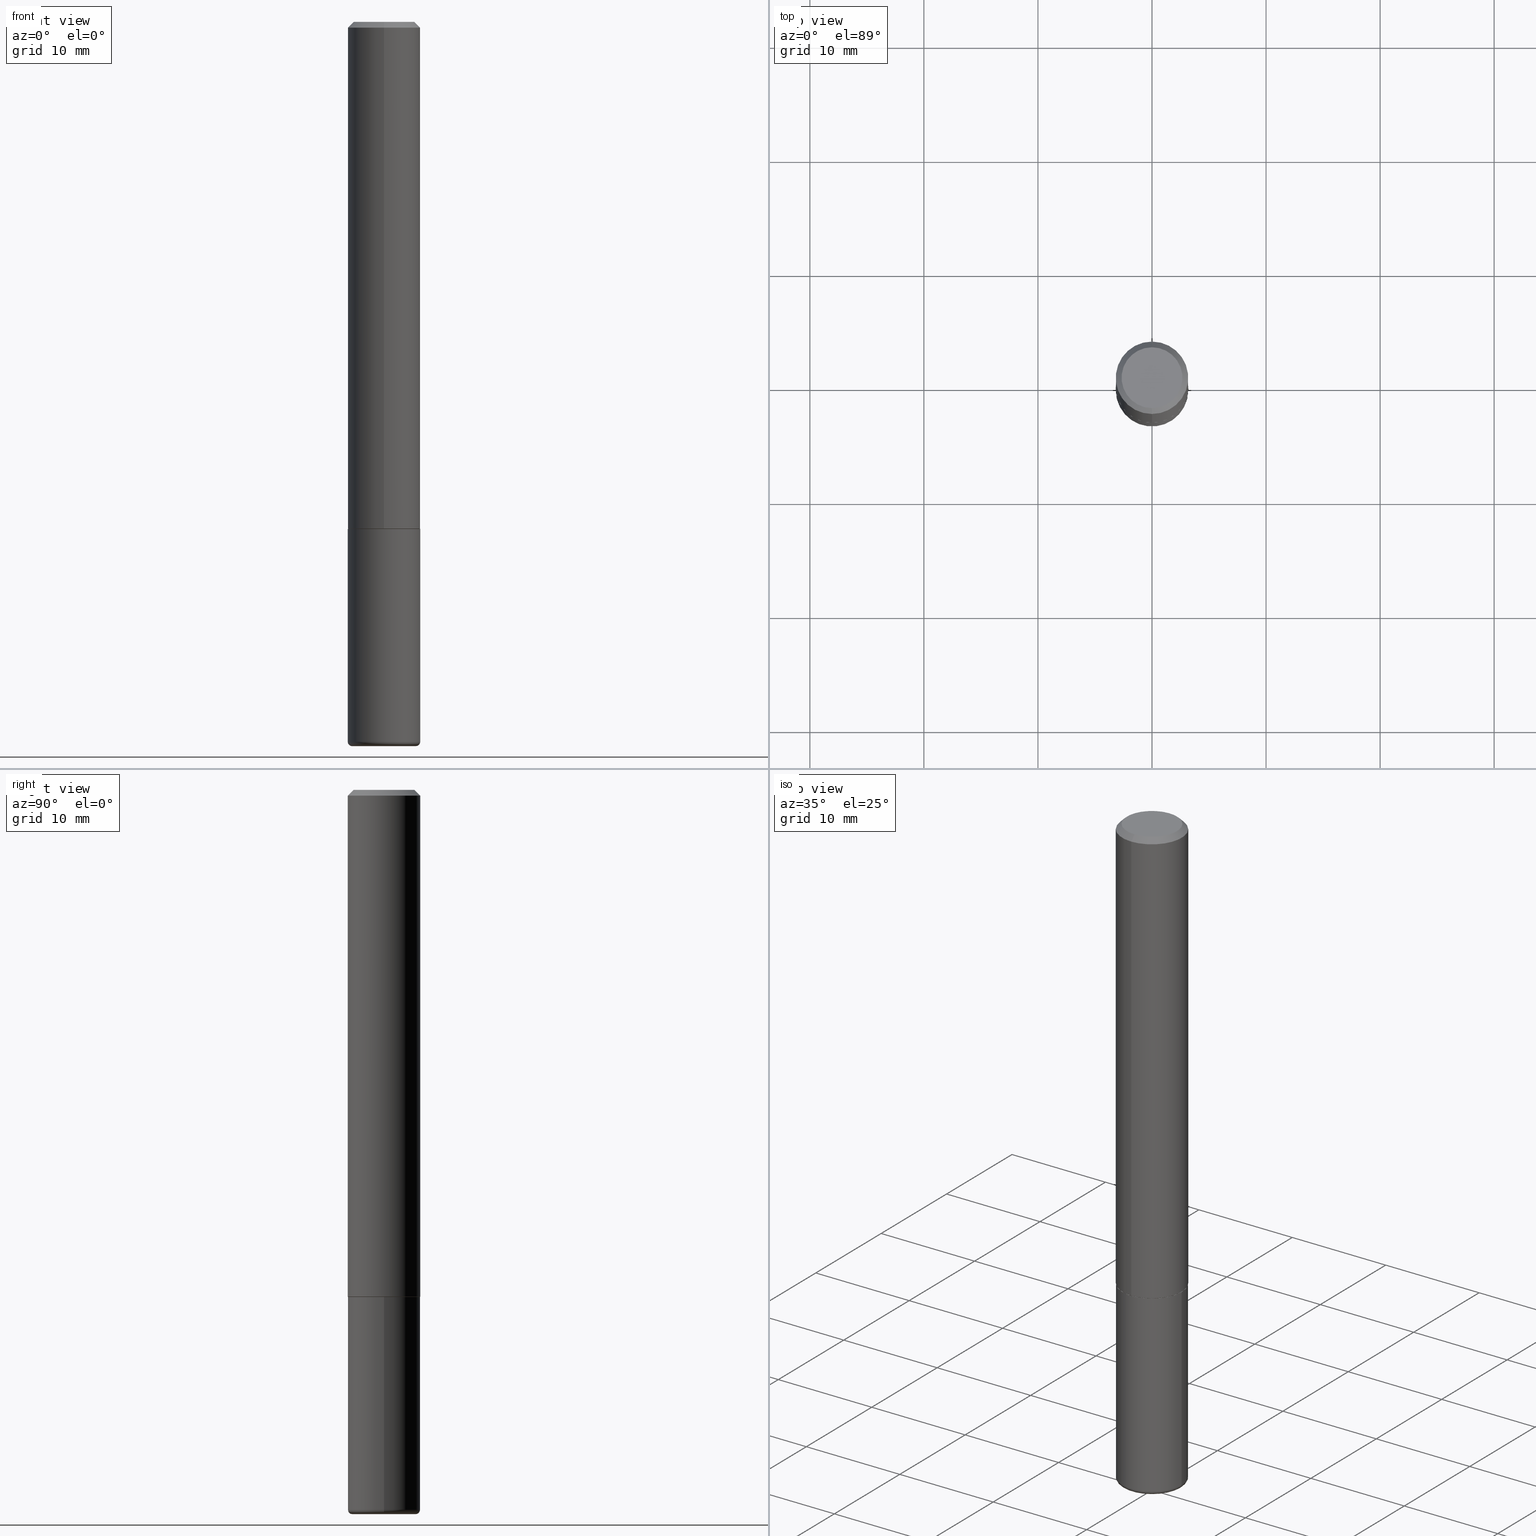
[diagram: canonical four-view strip — front | top / right | iso, engineering-drawing reading convention]
A machine part, canonical four-view strip (front | top / right | iso — engineering-drawing reading convention). The complete STEP part file that produces these views, byte-faithful:
ISO-10303-21;
HEADER;
FILE_DESCRIPTION (( 'STEP AP203' ),
    '1' );
FILE_NAME ('37433.STEP',
    '2024-03-02T01:16:58',
    ( '' ),
    ( '' ),
    'SwSTEP 2.0',
    'SolidWorks 2023',
    '' );
FILE_SCHEMA (( 'CONFIG_CONTROL_DESIGN' ));
ENDSEC;

DATA;
#1 = DIRECTION ( 'NONE',  ( -6.982962677686265922E-15, -1.000000000000000000, 4.406206441393973340E-15 ) ) ;
#2 = DIRECTION ( 'NONE',  ( -6.982962677686265922E-15, -1.000000000000000000, 4.406206441393973340E-15 ) ) ;
#3 = ORIENTED_EDGE ( 'NONE', *, *, #90, .T. ) ;
#4 = DIRECTION ( 'NONE',  ( -2.444769625519019670E-29, 3.492482605351917386E-15, 1.000000000000000000 ) ) ;
#5 = APPLICATION_CONTEXT ( 'configuration controlled 3d designs of mechanical parts and assemblies' ) ;
#6 = DIRECTION ( 'NONE',  ( 6.982962677686265922E-15, 1.000000000000000000, -3.483106191921935554E-15 ) ) ;
#7 = ORIENTED_EDGE ( 'NONE', *, *, #345, .F. ) ;
#8 = EDGE_CURVE ( 'NONE', #327, #274, #260, .T. ) ;
#9 = CARTESIAN_POINT ( 'NONE',  ( 0.000000000000000000, 0.000000000000000000, 0.000000000000000000 ) ) ;
#10 = AXIS2_PLACEMENT_3D ( 'NONE', #28, #411, #384 ) ;
#11 = CARTESIAN_POINT ( 'NONE',  ( 2.501956864421970211E-45, -3.574177598218272952E-31, -1.023391667789888407E-16 ) ) ;
#12 = VERTEX_POINT ( 'NONE', #375 ) ;
#13 = DATE_AND_TIME ( #281, #34 ) ;
#14 = DIRECTION ( 'NONE',  ( -1.000000000000000000, 6.982962677686265922E-15, -4.876176775795935793E-29 ) ) ;
#15 = VERTEX_POINT ( 'NONE', #218 ) ;
#16 = DIRECTION ( 'NONE',  ( -2.444769625519019670E-29, 3.492482605351917386E-15, 1.000000000000000000 ) ) ;
#17 = ORIENTED_EDGE ( 'NONE', *, *, #294, .T. ) ;
#18 = AXIS2_PLACEMENT_3D ( 'NONE', #11, #77, #206 ) ;
#19 = CARTESIAN_POINT ( 'NONE',  ( 4.279570410823989044E-29, -6.110092342975505460E-15, -1.750000000000000222 ) ) ;
#20 = AXIS2_PLACEMENT_3D ( 'NONE', #165, #4, #1 ) ;
#21 = DESIGN_CONTEXT ( 'detailed design', #108, 'design' ) ;
#22 = COORDINATED_UNIVERSAL_TIME_OFFSET ( 5, 0, .BEHIND. ) ;
#23 = DIRECTION ( 'NONE',  ( -6.982962677686265922E-15, -1.000000000000000000, 4.406206441393973340E-15 ) ) ;
#24 = ADVANCED_FACE ( 'NONE', ( #249 ), #89, .T. ) ;
#25 = SHAPE_DEFINITION_REPRESENTATION ( #416, #341 ) ;
#26 = DIRECTION ( 'NONE',  ( -2.444769625519019670E-29, 3.492482605351917386E-15, 1.000000000000000000 ) ) ;
#27 = COORDINATED_UNIVERSAL_TIME_OFFSET ( 5, 0, .BEHIND. ) ;
#28 = CARTESIAN_POINT ( 'NONE',  ( 4.279570410823989044E-29, -6.110092342975505460E-15, -1.750000000000000222 ) ) ;
#29 = AXIS2_PLACEMENT_3D ( 'NONE', #381, #127, #125 ) ;
#30 = COORDINATED_UNIVERSAL_TIME_OFFSET ( 5, 0, .BEHIND. ) ;
#31 = CARTESIAN_POINT ( 'NONE',  ( 8.846257060213681156E-16, 0.1239999999999938790, -1.750000000000000444 ) ) ;
#32 = DIRECTION ( 'NONE',  ( -2.445468806185136597E-29, 3.491481338843145583E-15, 1.000000000000000000 ) ) ;
#33 =( LENGTH_UNIT ( ) NAMED_UNIT ( * ) SI_UNIT ( $, .METRE. ) );
#34 = LOCAL_TIME ( 20, 16, 58.00000000000000000, #22 ) ;
#35 = PLANE ( 'NONE',  #149 ) ;
#36 = CARTESIAN_POINT ( 'NONE',  ( 8.728703347107837333E-16, 0.1249999999999999306, -0.02000000000000046185 ) ) ;
#37 = DIRECTION ( 'NONE',  ( -6.982962677686265922E-15, -1.000000000000000000, 3.483106191921935554E-15 ) ) ;
#38 = CC_DESIGN_DATE_AND_TIME_ASSIGNMENT ( #184, #74, ( #170 ) ) ;
#39 = ORIENTED_EDGE ( 'NONE', *, *, #253, .T. ) ;
#40 = CARTESIAN_POINT ( 'NONE',  ( 4.278346844658283722E-29, -6.111844559365854735E-15, -1.750000000000000000 ) ) ;
#41 = ORIENTED_EDGE ( 'NONE', *, *, #385, .F. ) ;
#42 = COORDINATED_UNIVERSAL_TIME_OFFSET ( 5, 0, .BEHIND. ) ;
#43 = CARTESIAN_POINT ( 'NONE',  ( -0.1100000000000000006, -7.867629522548422746E-15, -2.500000000000000444 ) ) ;
#44 = VERTEX_POINT ( 'NONE', #150 ) ;
#45 = EDGE_CURVE ( 'NONE', #342, #12, #75, .T. ) ;
#46 = CYLINDRICAL_SURFACE ( 'NONE', #66, 0.1250000000000000000 ) ;
#47 = ORIENTED_EDGE ( 'NONE', *, *, #302, .T. ) ;
#48 = VERTEX_POINT ( 'NONE', #87 ) ;
#49 = EDGE_CURVE ( 'NONE', #327, #398, #59, .T. ) ;
#50 = DIRECTION ( 'NONE',  ( -2.444769625519019670E-29, 3.492482605351917386E-15, 1.000000000000000000 ) ) ;
#51 = LOCAL_TIME ( 20, 16, 58.00000000000000000, #30 ) ;
#52 = DIRECTION ( 'NONE',  ( -2.445468806185136597E-29, 3.491481338843145583E-15, 1.000000000000000000 ) ) ;
#53 = VERTEX_POINT ( 'NONE', #376 ) ;
#54 = ORIENTED_EDGE ( 'NONE', *, *, #294, .F. ) ;
#55 = CARTESIAN_POINT ( 'NONE',  ( 8.881784197001260212E-16, 0.1250000000000001110, -4.365603256689900677E-16 ) ) ;
#56 = DIRECTION ( 'NONE',  ( 2.444769625519019670E-29, -3.492482605351917386E-15, -1.000000000000000000 ) ) ;
#57 = VECTOR ( 'NONE', #205, 39.37007874015748143 ) ;
#58 = EDGE_CURVE ( 'NONE', #44, #212, #387, .T. ) ;
#59 = LINE ( 'NONE', #344, #209 ) ;
#60 = APPROVAL ( #194, 'UNSPECIFIED' ) ;
#61 = CARTESIAN_POINT ( 'NONE',  ( 4.278346844658284843E-29, -6.111844559365856313E-15, -1.750000000000000222 ) ) ;
#62 = CARTESIAN_POINT ( 'NONE',  ( 6.113672015462842613E-29, -8.728703347107866520E-15, -2.500000000000000444 ) ) ;
#63 = DIRECTION ( 'NONE',  ( -6.982962677686265922E-15, -1.000000000000000000, 3.492482605351917386E-15 ) ) ;
#64 = AXIS2_PLACEMENT_3D ( 'NONE', #166, #203, #273 ) ;
#65 = ADVANCED_FACE ( 'NONE', ( #347 ), #372, .T. ) ;
#66 = AXIS2_PLACEMENT_3D ( 'NONE', #177, #136, #266 ) ;
#67 = DIRECTION ( 'NONE',  ( -6.982962677686265133E-15, -1.000000000000000000, 4.370956789862812472E-15 ) ) ;
#68 = EDGE_LOOP ( 'NONE', ( #39, #17, #264, #145 ) ) ;
#69 = LINE ( 'NONE', #36, #114 ) ;
#70 = ORIENTED_EDGE ( 'NONE', *, *, #101, .F. ) ;
#71 = CARTESIAN_POINT ( 'NONE',  ( -8.728703347107422194E-16, -0.1250000000000063560, -1.748999999999999222 ) ) ;
#72 = ORIENTED_EDGE ( 'NONE', *, *, #253, .F. ) ;
#73 = EDGE_CURVE ( 'NONE', #12, #342, #277, .T. ) ;
#74 = DATE_TIME_ROLE ( 'creation_date' ) ;
#75 = CIRCLE ( 'NONE', #129, 0.1239999999999999991 ) ;
#76 =( GEOMETRIC_REPRESENTATION_CONTEXT ( 3 ) GLOBAL_UNCERTAINTY_ASSIGNED_CONTEXT ( ( #261 ) ) GLOBAL_UNIT_ASSIGNED_CONTEXT ( ( #356, #199, #171 ) ) REPRESENTATION_CONTEXT ( 'NONE', 'WORKASPACE' ) );
#77 = DIRECTION ( 'NONE',  ( -2.444769625519019670E-29, 3.492482605351917386E-15, 1.000000000000000000 ) ) ;
#78 = ORIENTED_EDGE ( 'NONE', *, *, #324, .T. ) ;
#79 = ORIENTED_EDGE ( 'NONE', *, *, #8, .T. ) ;
#80 = APPROVAL_STATUS ( 'not_yet_approved' ) ;
#81 = ORIENTED_EDGE ( 'NONE', *, *, #132, .F. ) ;
#82 = EDGE_CURVE ( 'NONE', #337, #398, #83, .T. ) ;
#83 = CIRCLE ( 'NONE', #332, 0.1250000000000000000 ) ;
#84 = PERSON ( 'UNSPECIFIED', 'UNSPECIFIED', 'UNSPECIFIED', ('UNSPECIFIED'), ('UNSPECIFIED'), ('UNSPECIFIED') ) ;
#85 = ORIENTED_EDGE ( 'NONE', *, *, #155, .T. ) ;
#86 = AXIS2_PLACEMENT_3D ( 'NONE', #88, #317, #187 ) ;
#87 = CARTESIAN_POINT ( 'NONE',  ( -0.1250000000000001943, -7.788152707325089870E-15, -2.484999999999999876 ) ) ;
#88 = CARTESIAN_POINT ( 'NONE',  ( -0.1100000000000000006, -7.894734117689105781E-15, -2.484999999999999876 ) ) ;
#89 = CYLINDRICAL_SURFACE ( 'NONE', #97, 0.1250000000000000000 ) ;
#90 = EDGE_CURVE ( 'NONE', #342, #15, #111, .T. ) ;
#91 = PERSON_AND_ORGANIZATION_ROLE ( 'classification_officer' ) ;
#92 = FACE_OUTER_BOUND ( 'NONE', #238, .T. ) ;
#93 = DIRECTION ( 'NONE',  ( -2.444769625519019670E-29, 3.492482605351917386E-15, 1.000000000000000000 ) ) ;
#94 = AXIS2_PLACEMENT_3D ( 'NONE', #319, #346, #254 ) ;
#95 = CARTESIAN_POINT ( 'NONE',  ( 8.728703347107837333E-16, 0.1249999999999999306, -0.02000000000000046185 ) ) ;
#96 = PLANE ( 'NONE',  #121 ) ;
#97 = AXIS2_PLACEMENT_3D ( 'NONE', #122, #52, #189 ) ;
#98 = APPROVAL_PERSON_ORGANIZATION ( #278, #151, #309 ) ;
#99 = PERSON_AND_ORGANIZATION ( #84, #160 ) ;
#100 = PLANE ( 'NONE',  #140 ) ;
#101 = EDGE_CURVE ( 'NONE', #274, #327, #320, .T. ) ;
#102 = CARTESIAN_POINT ( 'NONE',  ( 8.810729923425669213E-16, 0.1239999999999938790, -1.750000000000000444 ) ) ;
#103 = ORIENTED_EDGE ( 'NONE', *, *, #58, .T. ) ;
#104 = CARTESIAN_POINT ( 'NONE',  ( 0.1250000000000000000, -8.728703347107833388E-16, 6.095220969744919741E-30 ) ) ;
#105 = CIRCLE ( 'NONE', #86, 0.01500000000000038629 ) ;
#106 = ORIENTED_EDGE ( 'NONE', *, *, #385, .T. ) ;
#107 = DIRECTION ( 'NONE',  ( 2.444769625519019670E-29, -3.492482605351917386E-15, -1.000000000000000000 ) ) ;
#108 = APPLICATION_CONTEXT ( 'configuration controlled 3d designs of mechanical parts and assemblies' ) ;
#109 = ORIENTED_EDGE ( 'NONE', *, *, #302, .F. ) ;
#110 = APPROVAL_STATUS ( 'not_yet_approved' ) ;
#111 = LINE ( 'NONE', #102, #227 ) ;
#112 = ORIENTED_EDGE ( 'NONE', *, *, #8, .F. ) ;
#113 = AXIS2_PLACEMENT_3D ( 'NONE', #339, #50, #23 ) ;
#114 = VECTOR ( 'NONE', #292, 39.37007874015748143 ) ;
#115 = VERTEX_POINT ( 'NONE', #71 ) ;
#116 = PERSON_AND_ORGANIZATION_ROLE ( 'creator' ) ;
#117 = ADVANCED_FACE ( 'NONE', ( #235 ), #255, .T. ) ;
#118 = ORIENTED_EDGE ( 'NONE', *, *, #284, .F. ) ;
#119 = CARTESIAN_POINT ( 'NONE',  ( 4.889539251038044560E-31, -6.984965210703842315E-17, -0.02000000000000002470 ) ) ;
#120 = AXIS2_PLACEMENT_3D ( 'NONE', #239, #134, #175 ) ;
#121 = AXIS2_PLACEMENT_3D ( 'NONE', #350, #283, #225 ) ;
#122 = CARTESIAN_POINT ( 'NONE',  ( 0.000000000000000000, 0.000000000000000000, 0.000000000000000000 ) ) ;
#123 = ADVANCED_FACE ( 'NONE', ( #365 ), #172, .T. ) ;
#124 = EDGE_LOOP ( 'NONE', ( #54, #243, #135, #185 ) ) ;
#125 = DIRECTION ( 'NONE',  ( 1.000000000000000000, -6.982962677686264344E-15, 4.883557194083111780E-29 ) ) ;
#126 = DATE_TIME_ROLE ( 'classification_date' ) ;
#127 = DIRECTION ( 'NONE',  ( -2.445468806185136597E-29, 3.491481338843145583E-15, 1.000000000000000000 ) ) ;
#128 = CARTESIAN_POINT ( 'NONE',  ( -7.889572697437263111E-16, -0.1050000000000001210, 2.643715067829629270E-16 ) ) ;
#129 = AXIS2_PLACEMENT_3D ( 'NONE', #312, #26, #248 ) ;
#130 = APPROVAL_PERSON_ORGANIZATION ( #343, #60, #383 ) ;
#131 = DIRECTION ( 'NONE',  ( -2.445468806185136597E-29, 3.491481338843145583E-15, 1.000000000000000000 ) ) ;
#132 = EDGE_CURVE ( 'NONE', #398, #337, #299, .T. ) ;
#133 = CYLINDRICAL_SURFACE ( 'NONE', #406, 0.1250000000000001110 ) ;
#134 = DIRECTION ( 'NONE',  ( -6.982962677686266711E-15, -1.000000000000000000, 3.491481338843145583E-15 ) ) ;
#135 = ORIENTED_EDGE ( 'NONE', *, *, #193, .T. ) ;
#136 = DIRECTION ( 'NONE',  ( -2.445468806185136597E-29, 3.491481338843145583E-15, 1.000000000000000000 ) ) ;
#137 = EDGE_LOOP ( 'NONE', ( #173, #296, #106, #304 ) ) ;
#138 = APPROVAL_ROLE ( '' ) ;
#139 = VECTOR ( 'NONE', #399, 39.37007874015748143 ) ;
#140 = AXIS2_PLACEMENT_3D ( 'NONE', #61, #197, #63 ) ;
#141 = DIRECTION ( 'NONE',  ( -6.982962677686265133E-15, -1.000000000000000000, 4.370956789862812472E-15 ) ) ;
#142 = EDGE_LOOP ( 'NONE', ( #112, #270, #232, #404 ) ) ;
#143 = SECURITY_CLASSIFICATION_LEVEL ( 'unclassified' ) ;
#144 = FACE_OUTER_BOUND ( 'NONE', #276, .T. ) ;
#145 = ORIENTED_EDGE ( 'NONE', *, *, #193, .F. ) ;
#146 = CALENDAR_DATE ( 2024, 1, 3 ) ;
#147 = DIRECTION ( 'NONE',  ( 5.024295867788490741E-15, 0.7071067811866103003, 0.7071067811864847341 ) ) ;
#148 = ORIENTED_EDGE ( 'NONE', *, *, #82, .T. ) ;
#149 = AXIS2_PLACEMENT_3D ( 'NONE', #303, #335, #14 ) ;
#150 = CARTESIAN_POINT ( 'NONE',  ( -0.1250000000000000000, -6.505033315300235838E-15, -1.750000000000000222 ) ) ;
#151 = APPROVAL ( #110, 'UNSPECIFIED' ) ;
#152 = PERSON_AND_ORGANIZATION ( #84, #160 ) ;
#153 = CARTESIAN_POINT ( 'NONE',  ( 2.501956864421970211E-45, -3.574177598218272952E-31, -1.023391667789888407E-16 ) ) ;
#154 = FACE_OUTER_BOUND ( 'NONE', #402, .T. ) ;
#155 = EDGE_CURVE ( 'NONE', #15, #115, #182, .T. ) ;
#156 = AXIS2_PLACEMENT_3D ( 'NONE', #363, #247, #295 ) ;
#157 = APPROVAL_PERSON_ORGANIZATION ( #408, #389, #138 ) ;
#158 = DIRECTION ( 'NONE',  ( 1.000000000000000000, -6.982962677686271444E-15, 0.000000000000000000 ) ) ;
#159 = DIRECTION ( 'NONE',  ( 2.444769625519019109E-29, -3.492482605351917386E-15, -1.000000000000000000 ) ) ;
#160 = ORGANIZATION ( 'UNSPECIFIED', 'UNSPECIFIED', '' ) ;
#161 = LINE ( 'NONE', #55, #287 ) ;
#162 = CARTESIAN_POINT ( 'NONE',  ( 0.1100000000000000006, -9.496829241653356490E-15, -2.500000000000000444 ) ) ;
#163 = EDGE_CURVE ( 'NONE', #12, #115, #396, .T. ) ;
#164 = CONICAL_SURFACE ( 'NONE', #354, 0.1250000000000000000, 0.7853981633974471688 ) ;
#165 = CARTESIAN_POINT ( 'NONE',  ( 4.278346844658283722E-29, -6.111844559365854735E-15, -1.750000000000000000 ) ) ;
#166 = CARTESIAN_POINT ( 'NONE',  ( 0.000000000000000000, 0.000000000000000000, 0.000000000000000000 ) ) ;
#167 = CARTESIAN_POINT ( 'NONE',  ( 0.000000000000000000, 0.000000000000000000, 0.000000000000000000 ) ) ;
#168 = CARTESIAN_POINT ( 'NONE',  ( 8.030407079339212239E-16, 0.1050000000000001210, -4.690498403409406824E-16 ) ) ;
#169 = EDGE_LOOP ( 'NONE', ( #47, #103 ) ) ;
#170 = PRODUCT_DEFINITION ( 'UNKNOWN', '', #373, #21 ) ;
#171 =( NAMED_UNIT ( * ) SI_UNIT ( $, .STERADIAN. ) SOLID_ANGLE_UNIT ( ) );
#172 = CYLINDRICAL_SURFACE ( 'NONE', #64, 0.1250000000000001110 ) ;
#173 = ORIENTED_EDGE ( 'NONE', *, *, #179, .F. ) ;
#174 = CIRCLE ( 'NONE', #256, 0.1250000000000002498 ) ;
#175 = DIRECTION ( 'NONE',  ( 1.000000000000000000, -6.982962677686217012E-15, 0.000000000000000000 ) ) ;
#176 = ORIENTED_EDGE ( 'NONE', *, *, #49, .F. ) ;
#177 = CARTESIAN_POINT ( 'NONE',  ( 0.000000000000000000, 0.000000000000000000, 0.000000000000000000 ) ) ;
#178 = EDGE_LOOP ( 'NONE', ( #366, #252 ) ) ;
#179 = EDGE_CURVE ( 'NONE', #48, #44, #401, .T. ) ;
#180 = ORIENTED_EDGE ( 'NONE', *, *, #101, .T. ) ;
#181 = APPROVAL_DATE_TIME ( #13, #389 ) ;
#182 = CIRCLE ( 'NONE', #233, 0.1250000000000002498 ) ;
#183 = CC_DESIGN_APPROVAL ( #389, ( #373 ) ) ;
#184 = DATE_AND_TIME ( #301, #321 ) ;
#185 = ORIENTED_EDGE ( 'NONE', *, *, #329, .F. ) ;
#186 = CC_DESIGN_PERSON_AND_ORGANIZATION_ASSIGNMENT ( #152, #407, ( #170 ) ) ;
#187 = DIRECTION ( 'NONE',  ( -1.000000000000000000, 7.105427357601001859E-15, 0.000000000000000000 ) ) ;
#188 = CONICAL_SURFACE ( 'NONE', #20, 0.1239999999999999991, 0.7853981633975336552 ) ;
#189 = DIRECTION ( 'NONE',  ( 1.000000000000000000, -6.982962677686266711E-15, 4.876176775795935793E-29 ) ) ;
#190 = PERSON_AND_ORGANIZATION ( #84, #160 ) ;
#191 = DIMENSIONAL_EXPONENTS ( 1.000000000000000000, 0.000000000000000000, 0.000000000000000000, 0.000000000000000000, 0.000000000000000000, 0.000000000000000000, 0.000000000000000000 ) ;
#192 = PLANE ( 'NONE',  #202 ) ;
#193 = EDGE_CURVE ( 'NONE', #400, #53, #246, .T. ) ;
#194 = APPROVAL_STATUS ( 'not_yet_approved' ) ;
#195 = APPLICATION_PROTOCOL_DEFINITION ( 'international standard', 'config_control_design', 1994, #5 ) ;
#196 = CC_DESIGN_DATE_AND_TIME_ASSIGNMENT ( #413, #126, ( #279 ) ) ;
#197 = DIRECTION ( 'NONE',  ( -2.444769625519019109E-29, 3.492482605351917386E-15, 1.000000000000000000 ) ) ;
#198 = DIRECTION ( 'NONE',  ( -6.982962677686265922E-15, -1.000000000000000000, 3.483106191921935554E-15 ) ) ;
#199 =( NAMED_UNIT ( * ) PLANE_ANGLE_UNIT ( ) SI_UNIT ( $, .RADIAN. ) );
#200 = DIRECTION ( 'NONE',  ( 1.000000000000000000, -6.982962677686270655E-15, 0.000000000000000000 ) ) ;
#201 = AXIS2_PLACEMENT_3D ( 'NONE', #216, #56, #282 ) ;
#202 = AXIS2_PLACEMENT_3D ( 'NONE', #351, #159, #285 ) ;
#203 = DIRECTION ( 'NONE',  ( -2.444769625519019670E-29, 3.492482605351917386E-15, 1.000000000000000000 ) ) ;
#204 = ORIENTED_EDGE ( 'NONE', *, *, #284, .T. ) ;
#205 = DIRECTION ( 'NONE',  ( -2.445468806185136877E-29, 3.491481338843145188E-15, 1.000000000000000000 ) ) ;
#206 = DIRECTION ( 'NONE',  ( -6.982962677686265133E-15, -1.000000000000000000, 3.492482605351917386E-15 ) ) ;
#207 = ORIENTED_EDGE ( 'NONE', *, *, #179, .T. ) ;
#208 = ORIENTED_EDGE ( 'NONE', *, *, #45, .T. ) ;
#209 = VECTOR ( 'NONE', #307, 39.37007874015748143 ) ;
#210 = AXIS2_PLACEMENT_3D ( 'NONE', #9, #257, #386 ) ;
#211 = CARTESIAN_POINT ( 'NONE',  ( 0.1250000000000000000, -6.982962677686288010E-15, -1.750000000000000222 ) ) ;
#212 = VERTEX_POINT ( 'NONE', #211 ) ;
#213 = CC_DESIGN_PERSON_AND_ORGANIZATION_ASSIGNMENT ( #244, #370, ( #373 ) ) ;
#214 = ORIENTED_EDGE ( 'NONE', *, *, #163, .F. ) ;
#215 = PERSON_AND_ORGANIZATION ( #84, #160 ) ;
#216 = CARTESIAN_POINT ( 'NONE',  ( 4.889539251038044560E-31, -6.984965210703842315E-17, -0.02000000000000002470 ) ) ;
#217 = CC_DESIGN_APPROVAL ( #60, ( #279 ) ) ;
#218 = CARTESIAN_POINT ( 'NONE',  ( 8.881784197001479121E-16, 0.1249999999999941019, -1.749000000000000332 ) ) ;
#219 = FACE_OUTER_BOUND ( 'NONE', #124, .T. ) ;
#220 = DIRECTION ( 'NONE',  ( -2.445468806185136597E-29, 3.491481338843145583E-15, 1.000000000000000000 ) ) ;
#221 = CIRCLE ( 'NONE', #382, 0.1100000000000000006 ) ;
#222 = CC_DESIGN_APPROVAL ( #151, ( #170 ) ) ;
#223 = EDGE_CURVE ( 'NONE', #53, #48, #353, .T. ) ;
#224 = CALENDAR_DATE ( 2024, 1, 3 ) ;
#225 = DIRECTION ( 'NONE',  ( -1.000000000000000000, 6.982962677686265922E-15, -4.876176775795935793E-29 ) ) ;
#226 = DIRECTION ( 'NONE',  ( 1.000000000000000000, -6.982962677686264344E-15, 4.883557194083111780E-29 ) ) ;
#227 = VECTOR ( 'NONE', #147, 39.37007874015748143 ) ;
#228 = ADVANCED_FACE ( 'NONE', ( #326 ), #164, .T. ) ;
#229 = PERSON_AND_ORGANIZATION_ROLE ( 'design_owner' ) ;
#230 = LENGTH_MEASURE_WITH_UNIT ( LENGTH_MEASURE( 0.02539999999999999897 ), #33 );
#231 = MANIFOLD_SOLID_BREP ( 'Body-Move/Copy2[1]', #380 ) ;
#232 = ORIENTED_EDGE ( 'NONE', *, *, #132, .T. ) ;
#233 = AXIS2_PLACEMENT_3D ( 'NONE', #275, #298, #141 ) ;
#234 = CC_DESIGN_PERSON_AND_ORGANIZATION_ASSIGNMENT ( #99, #229, ( #391 ) ) ;
#235 = FACE_OUTER_BOUND ( 'NONE', #300, .T. ) ;
#236 = ORIENTED_EDGE ( 'NONE', *, *, #223, .T. ) ;
#237 = DIRECTION ( 'NONE',  ( -2.445468806185136597E-29, 3.491481338843145583E-15, 1.000000000000000000 ) ) ;
#238 = EDGE_LOOP ( 'NONE', ( #180, #79 ) ) ;
#239 = CARTESIAN_POINT ( 'NONE',  ( 0.1100000000000000006, -9.444457021570706649E-15, -2.484999999999999876 ) ) ;
#240 = VERTEX_POINT ( 'NONE', #43 ) ;
#241 = CC_DESIGN_PERSON_AND_ORGANIZATION_ASSIGNMENT ( #190, #91, ( #279 ) ) ;
#242 = DATE_AND_TIME ( #146, #358 ) ;
#243 = ORIENTED_EDGE ( 'NONE', *, *, #318, .T. ) ;
#244 = PERSON_AND_ORGANIZATION ( #84, #160 ) ;
#245 = EDGE_LOOP ( 'NONE', ( #267, #85, #393, #362 ) ) ;
#246 = CIRCLE ( 'NONE', #120, 0.01500000000000038629 ) ;
#247 = DIRECTION ( 'NONE',  ( -2.445468806185136597E-29, 3.491481338843145583E-15, 1.000000000000000000 ) ) ;
#248 = DIRECTION ( 'NONE',  ( -6.982962677686265922E-15, -1.000000000000000000, 4.406206441393973340E-15 ) ) ;
#249 = FACE_OUTER_BOUND ( 'NONE', #137, .T. ) ;
#250 = CALENDAR_DATE ( 2024, 1, 3 ) ;
#251 = LINE ( 'NONE', #378, #325 ) ;
#252 = ORIENTED_EDGE ( 'NONE', *, *, #45, .F. ) ;
#253 = EDGE_CURVE ( 'NONE', #400, #240, #221, .T. ) ;
#254 = DIRECTION ( 'NONE',  ( 1.000000000000000000, -6.982962677686270655E-15, 0.000000000000000000 ) ) ;
#255 = CONICAL_SURFACE ( 'NONE', #308, 0.1239999999999999991, 0.7853981633975336552 ) ;
#256 = AXIS2_PLACEMENT_3D ( 'NONE', #305, #293, #67 ) ;
#257 = DIRECTION ( 'NONE',  ( 0.000000000000000000, 0.000000000000000000, 1.000000000000000000 ) ) ;
#258 = ADVANCED_FACE ( 'NONE', ( #331 ), #35, .F. ) ;
#259 = FACE_OUTER_BOUND ( 'NONE', #368, .T. ) ;
#260 = CIRCLE ( 'NONE', #314, 0.1050000000000001210 ) ;
#261 = UNCERTAINTY_MEASURE_WITH_UNIT (LENGTH_MEASURE( 1.000000000000000082E-05 ), #356, 'distance_accuracy_value', 'NONE');
#262 = CARTESIAN_POINT ( 'NONE',  ( 6.076989983370064174E-29, -8.676331127025216680E-15, -2.484999999999999876 ) ) ;
#263 = CARTESIAN_POINT ( 'NONE',  ( 4.889539251038044560E-31, -6.984965210703842315E-17, -0.02000000000000002470 ) ) ;
#264 = ORIENTED_EDGE ( 'NONE', *, *, #223, .F. ) ;
#265 = ADVANCED_FACE ( 'NONE', ( #144 ), #46, .T. ) ;
#266 = DIRECTION ( 'NONE',  ( 1.000000000000000000, -6.982962677686266711E-15, 4.876176775795935793E-29 ) ) ;
#267 = ORIENTED_EDGE ( 'NONE', *, *, #324, .F. ) ;
#268 = CIRCLE ( 'NONE', #10, 0.1250000000000000000 ) ;
#269 = CARTESIAN_POINT ( 'NONE',  ( -0.1250000000000000000, 8.881784197001252323E-16, -6.148668862818632227E-30 ) ) ;
#270 = ORIENTED_EDGE ( 'NONE', *, *, #49, .T. ) ;
#271 = APPLICATION_PROTOCOL_DEFINITION ( 'international standard', 'config_control_design', 1994, #108 ) ;
#272 = CC_DESIGN_PERSON_AND_ORGANIZATION_ASSIGNMENT ( #215, #116, ( #373 ) ) ;
#273 = DIRECTION ( 'NONE',  ( -6.982962677686266711E-15, -1.000000000000000000, 3.492482605351917386E-15 ) ) ;
#274 = VERTEX_POINT ( 'NONE', #168 ) ;
#275 = CARTESIAN_POINT ( 'NONE',  ( 4.275902075032765006E-29, -6.108352076760502035E-15, -1.748999999999999888 ) ) ;
#276 = EDGE_LOOP ( 'NONE', ( #236, #207, #109, #41 ) ) ;
#277 = CIRCLE ( 'NONE', #113, 0.1239999999999999991 ) ;
#278 = PERSON_AND_ORGANIZATION ( #84, #160 ) ;
#279 = SECURITY_CLASSIFICATION ( '', '', #143 ) ;
#280 = DIRECTION ( 'NONE',  ( 1.000000000000000000, -6.982962677686262766E-15, 0.000000000000000000 ) ) ;
#281 = CALENDAR_DATE ( 2024, 1, 3 ) ;
#282 = DIRECTION ( 'NONE',  ( 6.982962677686265922E-15, 1.000000000000000000, -3.483106191921935554E-15 ) ) ;
#283 = DIRECTION ( 'NONE',  ( 2.438088387897960049E-29, -3.491481338843145188E-15, -1.000000000000000000 ) ) ;
#284 = EDGE_CURVE ( 'NONE', #115, #15, #174, .T. ) ;
#285 = DIRECTION ( 'NONE',  ( 6.982962677686265922E-15, 1.000000000000000000, -3.492482605351917386E-15 ) ) ;
#286 = CLOSED_SHELL ( 'NONE', ( #117, #405, #65, #228, #123, #417, #369, #352 ) ) ;
#287 = VECTOR ( 'NONE', #410, 39.37007874015748143 ) ;
#288 = MECHANICAL_CONTEXT ( 'NONE', #5, 'mechanical' ) ;
#289 = DIRECTION ( 'NONE',  ( -2.444769625519019670E-29, 3.492482605351917386E-15, 1.000000000000000000 ) ) ;
#290 = CARTESIAN_POINT ( 'NONE',  ( -8.575622497214408537E-16, -0.1250000000000000555, -0.01999999999999959102 ) ) ;
#291 = AXIS2_PLACEMENT_3D ( 'NONE', #19, #220, #280 ) ;
#292 = DIRECTION ( 'NONE',  ( 4.937700262164541731E-15, 0.7071067811865442421, -0.7071067811865507924 ) ) ;
#293 = DIRECTION ( 'NONE',  ( -2.444769625519019670E-29, 3.492482605351917386E-15, 1.000000000000000000 ) ) ;
#294 = EDGE_CURVE ( 'NONE', #240, #48, #105, .T. ) ;
#295 = DIRECTION ( 'NONE',  ( 1.000000000000000000, -6.982962677686271444E-15, 0.000000000000000000 ) ) ;
#296 = ORIENTED_EDGE ( 'NONE', *, *, #329, .T. ) ;
#297 = FACE_OUTER_BOUND ( 'NONE', #178, .T. ) ;
#298 = DIRECTION ( 'NONE',  ( -2.444769625519019670E-29, 3.492482605351917386E-15, 1.000000000000000000 ) ) ;
#299 = CIRCLE ( 'NONE', #395, 0.1250000000000000000 ) ;
#300 = EDGE_LOOP ( 'NONE', ( #371, #3, #118, #214 ) ) ;
#301 = CALENDAR_DATE ( 2024, 1, 3 ) ;
#302 = EDGE_CURVE ( 'NONE', #212, #44, #268, .T. ) ;
#303 = CARTESIAN_POINT ( 'NONE',  ( 4.279570410823989044E-29, -6.110092342975505460E-15, -1.750000000000000222 ) ) ;
#304 = ORIENTED_EDGE ( 'NONE', *, *, #58, .F. ) ;
#305 = CARTESIAN_POINT ( 'NONE',  ( 4.275902075032765006E-29, -6.108352076760502035E-15, -1.748999999999999888 ) ) ;
#306 = EDGE_LOOP ( 'NONE', ( #176, #70, #333, #148 ) ) ;
#307 = DIRECTION ( 'NONE',  ( -4.851104656540957964E-15, -0.7071067811865491270, -0.7071067811865459074 ) ) ;
#308 = AXIS2_PLACEMENT_3D ( 'NONE', #40, #361, #2 ) ;
#309 = APPROVAL_ROLE ( '' ) ;
#310 = CIRCLE ( 'NONE', #334, 0.1249999999999999861 ) ;
#311 = ADVANCED_FACE ( 'NONE', ( #219 ), #316, .T. ) ;
#312 = CARTESIAN_POINT ( 'NONE',  ( 4.278346844658283722E-29, -6.111844559365854735E-15, -1.750000000000000000 ) ) ;
#313 = ORIENTED_EDGE ( 'NONE', *, *, #163, .T. ) ;
#314 = AXIS2_PLACEMENT_3D ( 'NONE', #153, #93, #349 ) ;
#315 = CARTESIAN_POINT ( 'NONE',  ( 6.076989983370064174E-29, -8.676331127025216680E-15, -2.484999999999999876 ) ) ;
#316 = TOROIDAL_SURFACE ( 'NONE', #29, 0.1100000000000000006, 0.01500000000000038629 ) ;
#317 = DIRECTION ( 'NONE',  ( 7.105427357601001859E-15, 1.000000000000000000, -3.491481338843145583E-15 ) ) ;
#318 = EDGE_CURVE ( 'NONE', #240, #400, #388, .T. ) ;
#319 = CARTESIAN_POINT ( 'NONE',  ( 6.113672015462842613E-29, -8.728703347107866520E-15, -2.500000000000000444 ) ) ;
#320 = CIRCLE ( 'NONE', #18, 0.1050000000000001210 ) ;
#321 = LOCAL_TIME ( 20, 16, 58.00000000000000000, #42 ) ;
#322 = DIRECTION ( 'NONE',  ( -6.982962677686266711E-15, -1.000000000000000000, 3.492482605351917386E-15 ) ) ;
#323 = DIRECTION ( 'NONE',  ( -2.444769625519019670E-29, 3.492482605351917386E-15, 1.000000000000000000 ) ) ;
#324 = EDGE_CURVE ( 'NONE', #15, #337, #161, .T. ) ;
#325 = VECTOR ( 'NONE', #414, 39.37007874015748143 ) ;
#326 = FACE_OUTER_BOUND ( 'NONE', #306, .T. ) ;
#327 = VERTEX_POINT ( 'NONE', #128 ) ;
#328 = ORIENTED_EDGE ( 'NONE', *, *, #155, .F. ) ;
#329 = EDGE_CURVE ( 'NONE', #48, #53, #310, .T. ) ;
#330 = COORDINATED_UNIVERSAL_TIME_OFFSET ( 5, 0, .BEHIND. ) ;
#331 = FACE_OUTER_BOUND ( 'NONE', #169, .T. ) ;
#332 = AXIS2_PLACEMENT_3D ( 'NONE', #409, #289, #198 ) ;
#333 = ORIENTED_EDGE ( 'NONE', *, *, #412, .T. ) ;
#334 = AXIS2_PLACEMENT_3D ( 'NONE', #315, #32, #158 ) ;
#335 = DIRECTION ( 'NONE',  ( 2.438088387897960049E-29, -3.491481338843145188E-15, -1.000000000000000000 ) ) ;
#336 = ORIENTED_EDGE ( 'NONE', *, *, #318, .F. ) ;
#337 = VERTEX_POINT ( 'NONE', #95 ) ;
#338 = ADVANCED_FACE ( 'NONE', ( #154 ), #96, .T. ) ;
#339 = CARTESIAN_POINT ( 'NONE',  ( 4.278346844658283722E-29, -6.111844559365854735E-15, -1.750000000000000000 ) ) ;
#340 = VECTOR ( 'NONE', #403, 39.37007874015748143 ) ;
#341 = ADVANCED_BREP_SHAPE_REPRESENTATION ( '37433', ( #231, #355, #210 ), #76 ) ;
#342 = VERTEX_POINT ( 'NONE', #31 ) ;
#343 = PERSON_AND_ORGANIZATION ( #84, #160 ) ;
#344 = CARTESIAN_POINT ( 'NONE',  ( -8.575622497214408537E-16, -0.1250000000000000555, -0.01999999999999959102 ) ) ;
#345 = EDGE_CURVE ( 'NONE', #115, #398, #251, .T. ) ;
#346 = DIRECTION ( 'NONE',  ( -2.445468806185136597E-29, 3.491481338843145583E-15, 1.000000000000000000 ) ) ;
#347 = FACE_OUTER_BOUND ( 'NONE', #142, .T. ) ;
#348 = AXIS2_PLACEMENT_3D ( 'NONE', #262, #131, #226 ) ;
#349 = DIRECTION ( 'NONE',  ( -6.982962677686265133E-15, -1.000000000000000000, 3.492482605351917386E-15 ) ) ;
#350 = CARTESIAN_POINT ( 'NONE',  ( -2.557415521296099768E-29, -2.114619422739997973E-14, -2.500000000000000000 ) ) ;
#351 = CARTESIAN_POINT ( 'NONE',  ( 7.332110811570587146E-16, 0.1050000000000001210, -4.178802569514461450E-16 ) ) ;
#352 = ADVANCED_FACE ( 'NONE', ( #92 ), #192, .F. ) ;
#353 = CIRCLE ( 'NONE', #156, 0.1249999999999999861 ) ;
#354 = AXIS2_PLACEMENT_3D ( 'NONE', #263, #107, #6 ) ;
#355 = MANIFOLD_SOLID_BREP ( 'Body-Move/Copy2[2]', #286 ) ;
#356 =( CONVERSION_BASED_UNIT ( 'INCH', #230 ) LENGTH_UNIT ( ) NAMED_UNIT ( #191 ) );
#357 = CARTESIAN_POINT ( 'NONE',  ( -8.658873720330540358E-16, -0.1240000000000061053, -1.749999999999999334 ) ) ;
#358 = LOCAL_TIME ( 20, 16, 58.00000000000000000, #330 ) ;
#359 = ORIENTED_EDGE ( 'NONE', *, *, #90, .F. ) ;
#360 = ADVANCED_FACE ( 'NONE', ( #374 ), #415, .T. ) ;
#361 = DIRECTION ( 'NONE',  ( -2.444769625519019670E-29, 3.492482605351917386E-15, 1.000000000000000000 ) ) ;
#362 = ORIENTED_EDGE ( 'NONE', *, *, #82, .F. ) ;
#363 = CARTESIAN_POINT ( 'NONE',  ( 6.076989983370064174E-29, -8.676331127025216680E-15, -2.484999999999999876 ) ) ;
#364 = EDGE_LOOP ( 'NONE', ( #359, #208, #313, #328 ) ) ;
#365 = FACE_OUTER_BOUND ( 'NONE', #245, .T. ) ;
#366 = ORIENTED_EDGE ( 'NONE', *, *, #73, .F. ) ;
#367 = APPROVAL_DATE_TIME ( #242, #151 ) ;
#368 = EDGE_LOOP ( 'NONE', ( #204, #78, #81, #7 ) ) ;
#369 = ADVANCED_FACE ( 'NONE', ( #297 ), #100, .F. ) ;
#370 = PERSON_AND_ORGANIZATION_ROLE ( 'design_supplier' ) ;
#371 = ORIENTED_EDGE ( 'NONE', *, *, #73, .T. ) ;
#372 = CONICAL_SURFACE ( 'NONE', #201, 0.1250000000000000000, 0.7853981633974471688 ) ;
#373 = PRODUCT_DEFINITION_FORMATION_WITH_SPECIFIED_SOURCE ( 'ANY', '', #391, .NOT_KNOWN. ) ;
#374 = FACE_OUTER_BOUND ( 'NONE', #68, .T. ) ;
#375 = CARTESIAN_POINT ( 'NONE',  ( -8.658873720330540358E-16, -0.1240000000000061053, -1.749999999999999334 ) ) ;
#376 = CARTESIAN_POINT ( 'NONE',  ( 0.1250000000000001943, -9.549201461736000019E-15, -2.484999999999999876 ) ) ;
#377 = APPROVAL_DATE_TIME ( #379, #60 ) ;
#378 = CARTESIAN_POINT ( 'NONE',  ( -8.728703347107841277E-16, -0.1250000000000001110, 4.365603256689900677E-16 ) ) ;
#379 = DATE_AND_TIME ( #224, #397 ) ;
#380 = CLOSED_SHELL ( 'NONE', ( #265, #360, #258, #24, #311, #338 ) ) ;
#381 = CARTESIAN_POINT ( 'NONE',  ( 6.076989983370064174E-29, -8.676331127025216680E-15, -2.484999999999999876 ) ) ;
#382 = AXIS2_PLACEMENT_3D ( 'NONE', #62, #237, #200 ) ;
#383 = APPROVAL_ROLE ( '' ) ;
#384 = DIRECTION ( 'NONE',  ( 1.000000000000000000, -6.982962677686262766E-15, 0.000000000000000000 ) ) ;
#385 = EDGE_CURVE ( 'NONE', #53, #212, #392, .T. ) ;
#386 = DIRECTION ( 'NONE',  ( 1.000000000000000000, 0.000000000000000000, 0.000000000000000000 ) ) ;
#387 = CIRCLE ( 'NONE', #291, 0.1250000000000000000 ) ;
#388 = CIRCLE ( 'NONE', #94, 0.1100000000000000006 ) ;
#389 = APPROVAL ( #80, 'UNSPECIFIED' ) ;
#390 = FACE_OUTER_BOUND ( 'NONE', #364, .T. ) ;
#391 = PRODUCT ( '37433', '37433', '', ( #288 ) ) ;
#392 = LINE ( 'NONE', #104, #57 ) ;
#393 = ORIENTED_EDGE ( 'NONE', *, *, #345, .T. ) ;
#394 = PRODUCT_RELATED_PRODUCT_CATEGORY ( 'detail', '', ( #391 ) ) ;
#395 = AXIS2_PLACEMENT_3D ( 'NONE', #119, #16, #37 ) ;
#396 = LINE ( 'NONE', #357, #340 ) ;
#397 = LOCAL_TIME ( 20, 16, 58.00000000000000000, #27 ) ;
#398 = VERTEX_POINT ( 'NONE', #290 ) ;
#399 = DIRECTION ( 'NONE',  ( -2.445468806185136877E-29, 3.491481338843145188E-15, 1.000000000000000000 ) ) ;
#400 = VERTEX_POINT ( 'NONE', #162 ) ;
#401 = LINE ( 'NONE', #269, #139 ) ;
#402 = EDGE_LOOP ( 'NONE', ( #72, #336 ) ) ;
#403 = DIRECTION ( 'NONE',  ( -4.937700262164969294E-15, -0.7071067811866054154, 0.7071067811864896191 ) ) ;
#404 = ORIENTED_EDGE ( 'NONE', *, *, #412, .F. ) ;
#405 = ADVANCED_FACE ( 'NONE', ( #259 ), #133, .T. ) ;
#406 = AXIS2_PLACEMENT_3D ( 'NONE', #167, #323, #322 ) ;
#407 = PERSON_AND_ORGANIZATION_ROLE ( 'creator' ) ;
#408 = PERSON_AND_ORGANIZATION ( #84, #160 ) ;
#409 = CARTESIAN_POINT ( 'NONE',  ( 4.889539251038044560E-31, -6.984965210703842315E-17, -0.02000000000000002470 ) ) ;
#410 = DIRECTION ( 'NONE',  ( -2.444769625519019670E-29, 3.492482605351917386E-15, 1.000000000000000000 ) ) ;
#411 = DIRECTION ( 'NONE',  ( -2.445468806185136597E-29, 3.491481338843145583E-15, 1.000000000000000000 ) ) ;
#412 = EDGE_CURVE ( 'NONE', #274, #337, #69, .T. ) ;
#413 = DATE_AND_TIME ( #250, #51 ) ;
#414 = DIRECTION ( 'NONE',  ( -2.444769625519019670E-29, 3.492482605351917386E-15, 1.000000000000000000 ) ) ;
#415 = TOROIDAL_SURFACE ( 'NONE', #348, 0.1100000000000000006, 0.01500000000000038629 ) ;
#416 = PRODUCT_DEFINITION_SHAPE ( 'NONE', 'NONE',  #170 ) ;
#417 = ADVANCED_FACE ( 'NONE', ( #390 ), #188, .T. ) ;
#418 = CC_DESIGN_SECURITY_CLASSIFICATION ( #279, ( #373 ) ) ;
ENDSEC;
END-ISO-10303-21;
